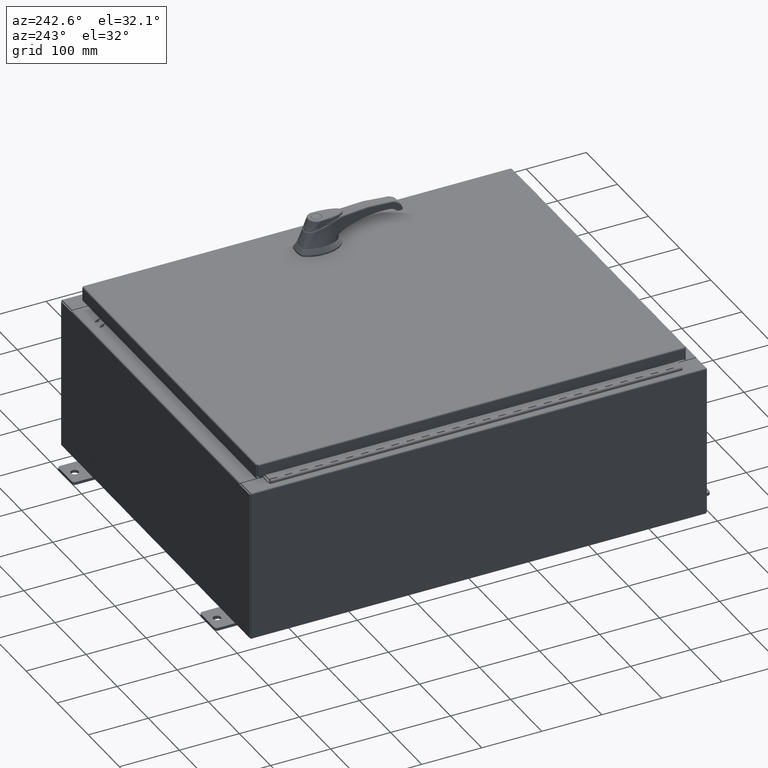
[diagram: clean part render]
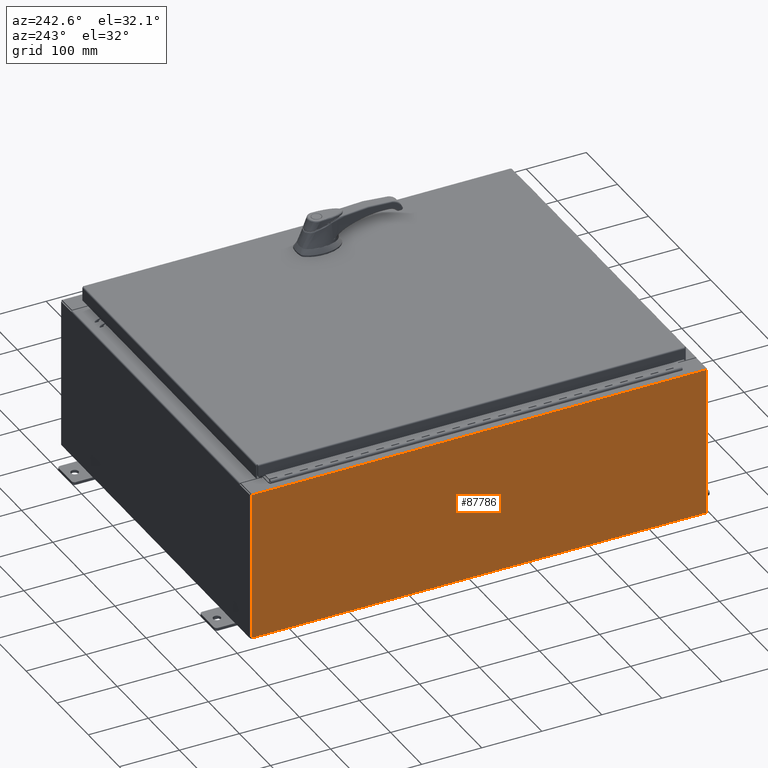
[diagram: same view with one face highlighted and labeled with its STEP entity id]
A machine part, auxiliary view. The second image highlights one B-rep face of the part: STEP entity #87786.
In plain terms, the highlighted planar face has unit normal (1, 0, 0).
Its self-contained STEP definition (entity closure, byte-faithful):
#1225 = VECTOR ( 'NONE', #59411, 39.37007874015748100 ) ;
#2152 = PLANE ( 'NONE',  #5534 ) ;
#3621 = EDGE_LOOP ( 'NONE', ( #92488, #12939, #42613, #54629 ) ) ;
#4478 = EDGE_CURVE ( 'NONE', #65794, #117078, #46389, .T. ) ;
#5534 = AXIS2_PLACEMENT_3D ( 'NONE', #28603, #83551, #29363 ) ;
#8496 = CARTESIAN_POINT ( 'NONE',  ( -12.00000000000000500, -14.92530000000000000, -4.253780798634224700E-014 ) ) ;
#11529 = CARTESIAN_POINT ( 'NONE',  ( -12.00000000000004100, -14.92530000000000000, 9.837599999999998300 ) ) ;
#12939 = ORIENTED_EDGE ( 'NONE', *, *, #78575, .T. ) ;
#14281 = DIRECTION ( 'NONE',  ( 3.523082860860888200E-015, 0.0000000000000000000, -1.000000000000000000 ) ) ;
#17435 = CARTESIAN_POINT ( 'NONE',  ( -12.00000000000000500, 14.92530000000000000, 0.01299999999999984300 ) ) ;
#23626 = CARTESIAN_POINT ( 'NONE',  ( -12.00000000000004100, -14.92530000000000000, 9.837599999999998300 ) ) ;
#28603 = CARTESIAN_POINT ( 'NONE',  ( -12.00000000000000500, 0.0000000000000000000, -4.253780798634224700E-014 ) ) ;
#29068 = LINE ( 'NONE', #23626, #101303 ) ;
#29363 = DIRECTION ( 'NONE',  ( 3.523082860860887800E-015, 0.0000000000000000000, -1.000000000000000000 ) ) ;
#33060 = VECTOR ( 'NONE', #14281, 39.37007874015748100 ) ;
#42613 = ORIENTED_EDGE ( 'NONE', *, *, #55111, .F. ) ;
#46389 = LINE ( 'NONE', #8496, #1225 ) ;
#47143 = EDGE_CURVE ( 'NONE', #117078, #80406, #29068, .T. ) ;
#54629 = ORIENTED_EDGE ( 'NONE', *, *, #4478, .T. ) ;
#55111 = EDGE_CURVE ( 'NONE', #65794, #88454, #117164, .T. ) ;
#57018 = LINE ( 'NONE', #59206, #33060 ) ;
#59206 = CARTESIAN_POINT ( 'NONE',  ( -12.00000000000000500, 14.92530000000000000, -4.253780798634224700E-014 ) ) ;
#59411 = DIRECTION ( 'NONE',  ( -3.523082860860888200E-015, 0.0000000000000000000, 1.000000000000000000 ) ) ;
#63651 = FACE_OUTER_BOUND ( 'NONE', #3621, .T. ) ;
#65794 = VERTEX_POINT ( 'NONE', #79854 ) ;
#78575 = EDGE_CURVE ( 'NONE', #80406, #88454, #57018, .T. ) ;
#79854 = CARTESIAN_POINT ( 'NONE',  ( -12.00000000000000500, -14.92530000000000000, 0.01299999999999984700 ) ) ;
#80406 = VERTEX_POINT ( 'NONE', #95740 ) ;
#83551 = DIRECTION ( 'NONE',  ( 1.000000000000000000, 0.0000000000000000000, 3.523082860860887800E-015 ) ) ;
#86881 = DIRECTION ( 'NONE',  ( 0.0000000000000000000, 1.000000000000000000, 0.0000000000000000000 ) ) ;
#86901 = CARTESIAN_POINT ( 'NONE',  ( -12.00000000000000500, 14.92530000000000000, 0.01299999999999984700 ) ) ;
#87786 = ADVANCED_FACE ( 'NONE', ( #63651 ), #2152, .F. ) ;
#88454 = VERTEX_POINT ( 'NONE', #17435 ) ;
#90187 = VECTOR ( 'NONE', #96045, 39.37007874015748100 ) ;
#92488 = ORIENTED_EDGE ( 'NONE', *, *, #47143, .T. ) ;
#95740 = CARTESIAN_POINT ( 'NONE',  ( -12.00000000000004100, 14.92530000000000000, 9.837599999999998300 ) ) ;
#96045 = DIRECTION ( 'NONE',  ( -0.0000000000000000000, 1.000000000000000000, -0.0000000000000000000 ) ) ;
#101303 = VECTOR ( 'NONE', #86881, 39.37007874015748100 ) ;
#117078 = VERTEX_POINT ( 'NONE', #11529 ) ;
#117164 = LINE ( 'NONE', #86901, #90187 ) ;